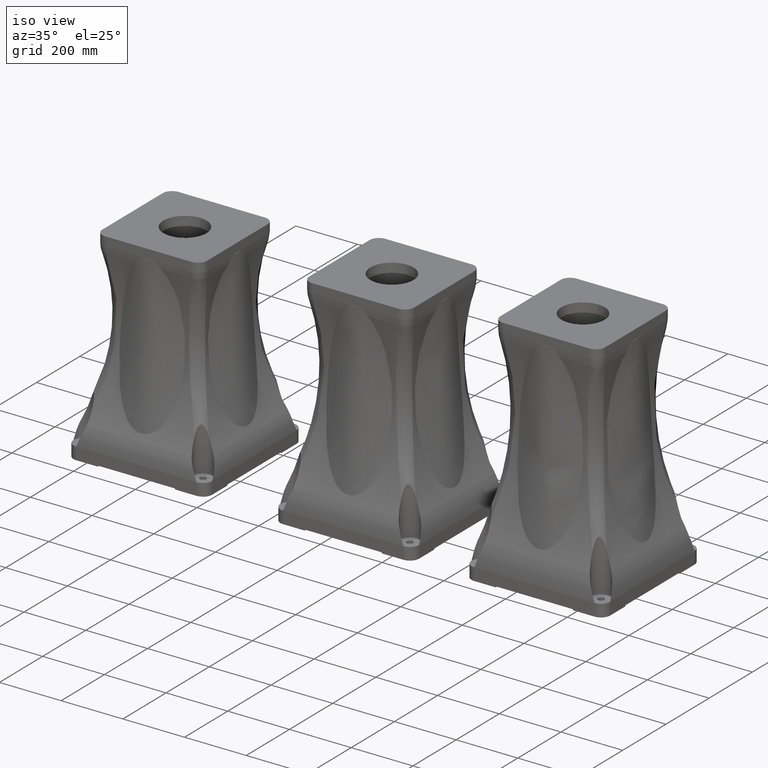
[diagram: clean part render]
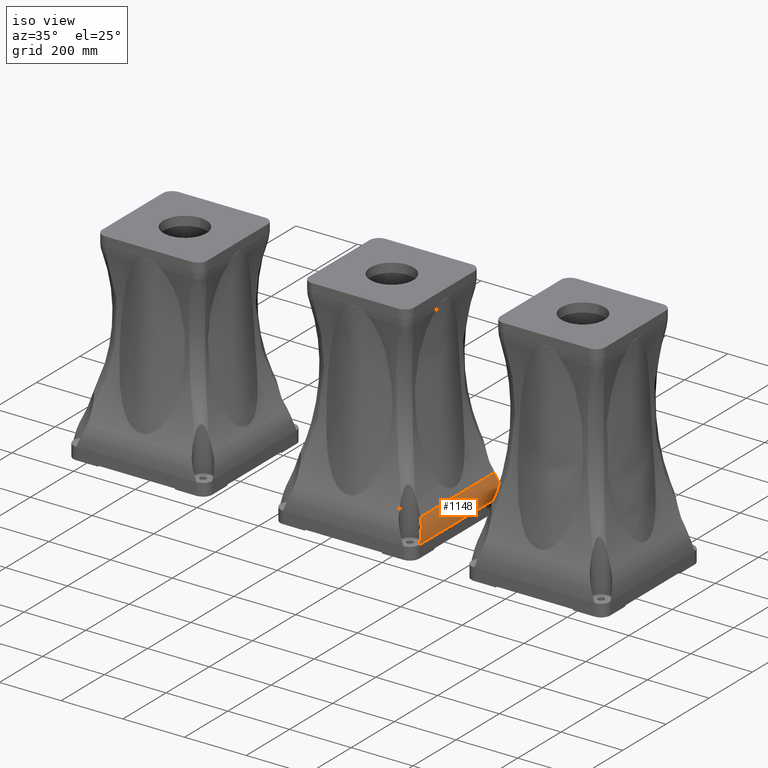
[diagram: same view with one face highlighted and labeled with its STEP entity id]
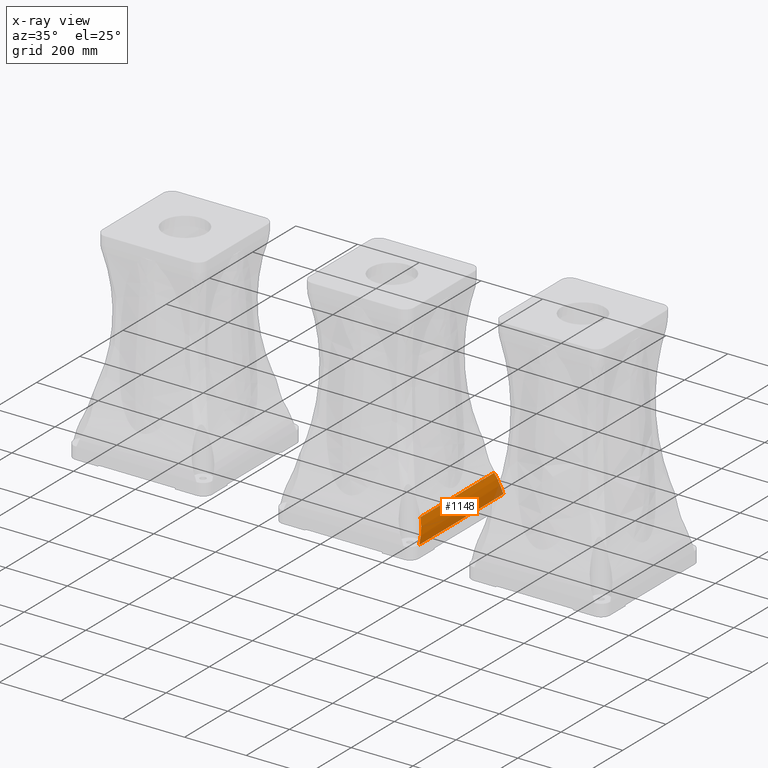
[diagram: x-ray of the same camera — body ghosted, the highlighted face saturated]
A machine part, iso view. The second image highlights one B-rep face of the part: STEP entity #1148.
The next image is the same camera in x-ray: the body ghosted, the highlighted face saturated — about 3% of this face is hidden behind the body in this view.
In plain terms, the highlighted face is a SurfaceOfExtrusion surface.
Its self-contained STEP definition (entity closure, byte-faithful):
#1148=ADVANCED_FACE('',(#1924),#1925,.T.);
#1924=FACE_OUTER_BOUND('',#5149,.T.);
#1925=SURFACE_OF_LINEAR_EXTRUSION('',#5150,#5151);
#5149=EDGE_LOOP('',(#11603,#11604,#11605,#11606));
#5150=(B_SPLINE_CURVE(3,(#11608,#11609,#11610,#11611,#11612,#11613,#11614),.UNSPECIFIED.,.T.,.F.)B_SPLINE_CURVE_WITH_KNOTS((4,3,4),(0.0,0.5,1.0),.UNSPECIFIED.)RATIONAL_B_SPLINE_CURVE((1.0,0.333333333333334,0.333333333333334,1.0,0.333333333333334,0.333333333333334,1.0))BOUNDED_CURVE()REPRESENTATION_ITEM('')GEOMETRIC_REPRESENTATION_ITEM()CURVE());
#5151=VECTOR('',#11621,1.0);
#11603=ORIENTED_EDGE('',*,*,#14885,.F.);
#11604=ORIENTED_EDGE('',*,*,#14881,.T.);
#11605=ORIENTED_EDGE('',*,*,#14886,.F.);
#11606=ORIENTED_EDGE('',*,*,#14887,.T.);
#11608=CARTESIAN_POINT('',(331.588,-260.555555555553,839.272977914511));
#11609=CARTESIAN_POINT('',(531.588,-260.555555555553,839.27297791451));
#11610=CARTESIAN_POINT('',(531.588,-260.555555555553,561.42125289451));
#11611=CARTESIAN_POINT('',(331.588,-260.555555555553,561.421252894511));
#11612=CARTESIAN_POINT('',(131.588,-260.555555555553,561.42125289451));
#11613=CARTESIAN_POINT('',(131.588,-260.555555555553,839.27297791451));
#11614=CARTESIAN_POINT('',(331.588,-260.555555555553,839.272977914511));
#11621=DIRECTION('',(0.0,1.0,0.0));
#14881=EDGE_CURVE('',#16464,#16461,#16465,.T.);
#14885=EDGE_CURVE('',#16464,#16470,#16471,.T.);
#14886=EDGE_CURVE('',#16472,#16461,#16473,.T.);
#14887=EDGE_CURVE('',#16472,#16470,#16474,.T.);
#16461=VERTEX_POINT('',#23031);
#16464=VERTEX_POINT('',#23047);
#16465=B_SPLINE_CURVE_WITH_KNOTS('',3,(#23048,#23049,#23050,#23051,#23052,#23053,#23054,#23055,#23056,#23057,#23058,#23059,#23060,#23061,#23062,#23063,#23064,#23065,#23066,#23067),.UNSPECIFIED.,.F.,.F.,(4,2,2,2,2,2,2,1,1,2,4),(0.0,0.00925640119941707,0.0185128023988341,0.0370256047976683,0.0555384071965024,0.0647948083959196,0.0694230089956284,0.0717371092954827,0.0728941594454098,0.0734726845203731,0.0740512095953365),.UNSPECIFIED.);
#16470=VERTEX_POINT('',#23117);
#16471=LINE('',#23118,#23119);
#16472=VERTEX_POINT('',#23120);
#16473=LINE('',#23121,#23122);
#16474=B_SPLINE_CURVE_WITH_KNOTS('',3,(#23123,#23124,#23125,#23126,#23127,#23128,#23129,#23130,#23131,#23132,#23133,#23134,#23135,#23136,#23137,#23138,#23139,#23140,#23141,#23142,#23143,#23144,#23145,#23146),.UNSPECIFIED.,.F.,.F.,(4,1,1,1,1,1,1,1,1,1,1,1,1,1,1,1,1,1,1,1,1,4),(0.0,0.0203007952355688,0.0392737614755106,0.056917919885292,0.0732328129047238,0.0882184058506769,0.101874995763422,0.11420312767398,0.125203518416206,0.19111983411241,0.250391502778136,0.315146143644532,0.375546706945619,0.500642545571844,0.631141088631178,0.750586962606813,0.875372930562843,0.93770996348871,0.953421039633593,0.968861683401061,0.982866136210024,1.0),.UNSPECIFIED.);
#23031=CARTESIAN_POINT('',(431.588,-205.555555555555,700.347115404511));
#23047=CARTESIAN_POINT('',(418.583,-180.833703379798,768.857006495383));
#23048=CARTESIAN_POINT('',(418.583,-180.833703379798,768.857006495383));
#23049=CARTESIAN_POINT('',(419.726617038499,-181.619881188447,766.054234070643));
#23050=CARTESIAN_POINT('',(420.779024325532,-182.459608152706,763.248430743724));
#23051=CARTESIAN_POINT('',(422.720323001467,-184.221471894427,757.626631698246));
#23052=CARTESIAN_POINT('',(423.609137776618,-185.143725487506,754.810658587854));
#23053=CARTESIAN_POINT('',(426.049678320131,-188.007918775143,746.342908437446));
#23054=CARTESIAN_POINT('',(427.376882944628,-190.046125838029,740.671222778467));
#23055=CARTESIAN_POINT('',(429.491012277642,-194.284761460711,729.255631366617));
#23056=CARTESIAN_POINT('',(430.277458058248,-196.486061661188,723.511916455619));
#23057=CARTESIAN_POINT('',(431.065391828471,-199.861826392277,714.828641205743));
#23058=CARTESIAN_POINT('',(431.261466055968,-200.995196748257,711.934040263701));
#23059=CARTESIAN_POINT('',(431.457445069567,-202.701765743291,707.590513903912));
#23060=CARTESIAN_POINT('',(431.5064027021,-203.271727170696,706.142364719001));
#23061=CARTESIAN_POINT('',(431.55536313839,-204.127683146695,703.969431173476));
#23062=CARTESIAN_POINT('',(431.573722866169,-204.555914802839,702.882786973557));
#23063=CARTESIAN_POINT('',(431.584432907953,-205.055822980677,701.614670281649));
#23064=CARTESIAN_POINT('',(431.586727137857,-205.270119721315,701.071107576356));
#23065=CARTESIAN_POINT('',(431.587746326261,-205.412993754865,700.708713090236));
#23066=CARTESIAN_POINT('',(431.588,-205.484825294849,700.526517605455));
#23067=CARTESIAN_POINT('',(431.588,-205.555555555556,700.347115404511));
#23117=CARTESIAN_POINT('',(418.583,159.722592268687,768.857006495383));
#23118=CARTESIAN_POINT('',(418.583,-260.555555555553,768.857006495383));
#23119=VECTOR('',#30623,1.0);
#23120=CARTESIAN_POINT('',(431.588,184.444444444444,700.347115404507));
#23121=CARTESIAN_POINT('',(431.588,-235.555555555555,700.347115404511));
#23122=VECTOR('',#30624,1.0);
#23123=CARTESIAN_POINT('',(431.588,184.444444444447,700.347115404511));
#23124=CARTESIAN_POINT('',(431.587019899051,184.259729542071,700.8157161438));
#23125=CARTESIAN_POINT('',(431.585123803335,183.902381520346,701.722267510312));
#23126=CARTESIAN_POINT('',(431.570553392328,183.384684989606,703.03610532284));
#23127=CARTESIAN_POINT('',(431.549591295347,182.903365109627,704.257871425862));
#23128=CARTESIAN_POINT('',(431.523172777454,182.458436926949,705.387513486899));
#23129=CARTESIAN_POINT('',(431.493107379276,182.049896706427,706.425023789457));
#23130=CARTESIAN_POINT('',(431.460832045192,181.677748911661,707.370438080754));
#23131=CARTESIAN_POINT('',(431.427708540479,181.341982807665,708.223818050653));
#23132=CARTESIAN_POINT('',(431.339128376371,180.532469763863,710.282926758221));
#23133=CARTESIAN_POINT('',(431.160385742491,179.300659621154,713.424702236275));
#23134=CARTESIAN_POINT('',(430.811703233887,177.592215737911,717.80332330644));
#23135=CARTESIAN_POINT('',(430.376827933976,175.946857170556,722.051417028215));
#23136=CARTESIAN_POINT('',(429.653603050221,173.736887758083,727.809036632964));
#23137=CARTESIAN_POINT('',(428.488379014817,170.997905187944,735.065427182296));
#23138=CARTESIAN_POINT('',(426.681130238237,167.86839236325,743.644554170619));
#23139=CARTESIAN_POINT('',(424.444701173245,164.89616977461,752.169525872781));
#23140=CARTESIAN_POINT('',(422.254773741423,162.630118630511,759.097286167197));
#23141=CARTESIAN_POINT('',(420.613927509941,161.236952722572,763.64715182111));
#23142=CARTESIAN_POINT('',(419.819713443799,160.618464471173,765.736954927542));
#23143=CARTESIAN_POINT('',(419.428629254977,160.323931826471,766.744725283186));
#23144=CARTESIAN_POINT('',(419.018339903927,160.026298975806,767.783346513215));
#23145=CARTESIAN_POINT('',(418.737520772754,159.830390783483,768.475918594588));
#23146=CARTESIAN_POINT('',(418.583,159.722592268687,768.857006495382));
#30623=DIRECTION('',(0.0,1.0,0.0));
#30624=DIRECTION('',(0.0,-1.0,0.0));